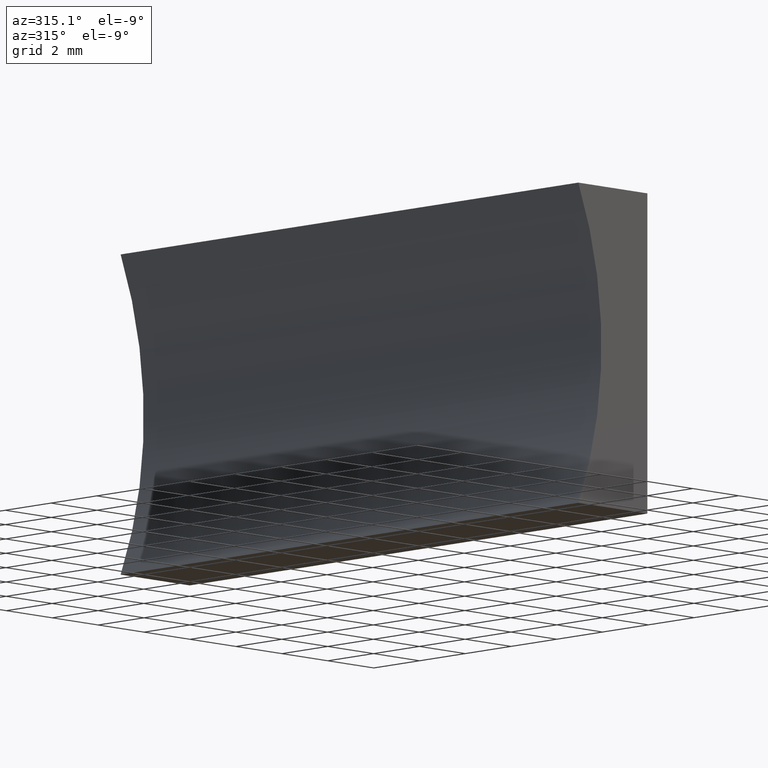
[diagram: clean part render]
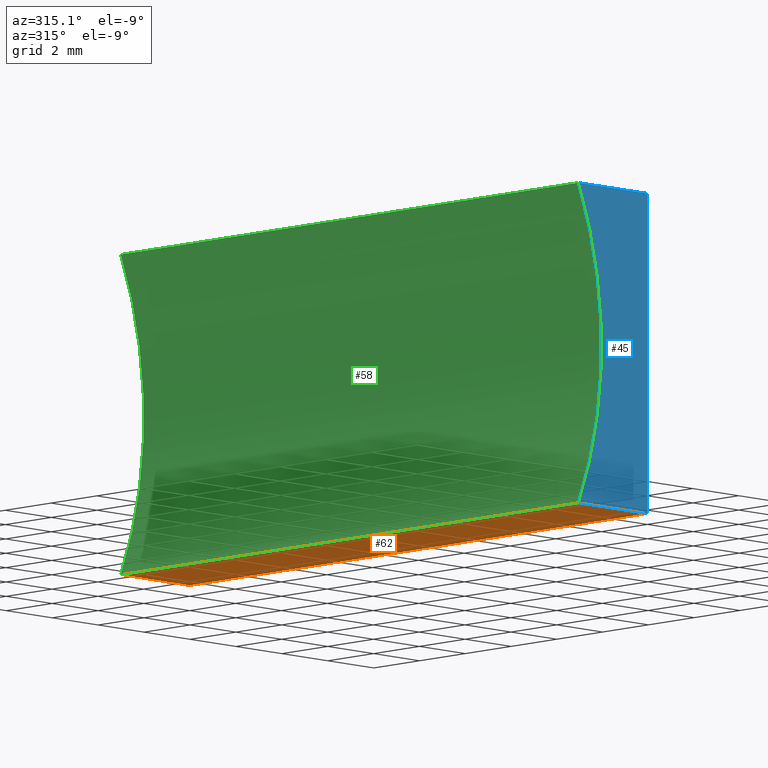
[diagram: same view with three faces highlighted in distinct colors, each labeled with its STEP entity id]
A machine part, auxiliary view with three faces highlighted in distinct colors.
Their STEP definitions:

[orange] entity #62 — the highlighted planar face has unit normal (-0, 0, 1).
#6 = VERTEX_POINT ( 'NONE', #30 ) ;
#10 = FACE_OUTER_BOUND ( 'NONE', #200, .T. ) ;
#14 = DIRECTION ( 'NONE',  ( -1.000000000000000000, 0.0000000000000000000, -5.771121341056381500E-016 ) ) ;
#15 = CARTESIAN_POINT ( 'NONE',  ( 0.0000000000000000000, 0.0000000000000000000, 0.0000000000000000000 ) ) ;
#17 = VECTOR ( 'NONE', #14, 1000.000000000000000 ) ;
#29 = DIRECTION ( 'NONE',  ( -0.0000000000000000000, -1.000000000000000000, -0.0000000000000000000 ) ) ;
#30 = CARTESIAN_POINT ( 'NONE',  ( -3.005869004409587000, 0.0000000000000000000, -2.602085213965210600E-015 ) ) ;
#39 = DIRECTION ( 'NONE',  ( 1.000000000000000000, 0.0000000000000000000, 5.771121341056381500E-016 ) ) ;
#42 = CARTESIAN_POINT ( 'NONE',  ( 0.0000000000000000000, 20.00000000000000000, 0.0000000000000000000 ) ) ;
#46 = EDGE_CURVE ( 'NONE', #57, #6, #64, .T. ) ;
#51 = CARTESIAN_POINT ( 'NONE',  ( 0.0000000000000000000, 20.00000000000000000, 0.0000000000000000000 ) ) ;
#52 = LINE ( 'NONE', #51, #17 ) ;
#57 = VERTEX_POINT ( 'NONE', #15 ) ;
#59 = VECTOR ( 'NONE', #96, 1000.000000000000000 ) ;
#62 = ADVANCED_FACE ( 'NONE', ( #10 ), #88, .F. ) ;
#64 = LINE ( 'NONE', #130, #81 ) ;
#68 = CARTESIAN_POINT ( 'NONE',  ( 0.0000000000000000000, 20.00000000000000000, 0.0000000000000000000 ) ) ;
#69 = EDGE_CURVE ( 'NONE', #95, #118, #52, .T. ) ;
#78 = AXIS2_PLACEMENT_3D ( 'NONE', #68, #151, #39 ) ;
#79 = ORIENTED_EDGE ( 'NONE', *, *, #46, .T. ) ;
#81 = VECTOR ( 'NONE', #91, 1000.000000000000000 ) ;
#88 = PLANE ( 'NONE',  #78 ) ;
#91 = DIRECTION ( 'NONE',  ( -1.000000000000000000, 0.0000000000000000000, -5.771121341056381500E-016 ) ) ;
#95 = VERTEX_POINT ( 'NONE', #142 ) ;
#96 = DIRECTION ( 'NONE',  ( -0.0000000000000000000, -1.000000000000000000, -0.0000000000000000000 ) ) ;
#101 = EDGE_CURVE ( 'NONE', #95, #57, #189, .T. ) ;
#110 = ORIENTED_EDGE ( 'NONE', *, *, #204, .F. ) ;
#118 = VERTEX_POINT ( 'NONE', #163 ) ;
#121 = CARTESIAN_POINT ( 'NONE',  ( -3.005869004409587000, 20.00000000000000000, -2.602085213965210600E-015 ) ) ;
#123 = LINE ( 'NONE', #121, #59 ) ;
#130 = CARTESIAN_POINT ( 'NONE',  ( 0.0000000000000000000, 0.0000000000000000000, 0.0000000000000000000 ) ) ;
#140 = VECTOR ( 'NONE', #29, 1000.000000000000000 ) ;
#142 = CARTESIAN_POINT ( 'NONE',  ( 0.0000000000000000000, 20.00000000000000000, 0.0000000000000000000 ) ) ;
#151 = DIRECTION ( 'NONE',  ( -5.771121341056381500E-016, 0.0000000000000000000, 1.000000000000000000 ) ) ;
#162 = ORIENTED_EDGE ( 'NONE', *, *, #101, .T. ) ;
#163 = CARTESIAN_POINT ( 'NONE',  ( -3.005869004409587000, 20.00000000000000000, -2.602085213965210600E-015 ) ) ;
#189 = LINE ( 'NONE', #42, #140 ) ;
#193 = ORIENTED_EDGE ( 'NONE', *, *, #69, .F. ) ;
#200 = EDGE_LOOP ( 'NONE', ( #79, #110, #193, #162 ) ) ;
#204 = EDGE_CURVE ( 'NONE', #118, #6, #123, .T. ) ;

[blue] entity #45 — the highlighted planar face has unit normal (0, 1, 0).
#6 = VERTEX_POINT ( 'NONE', #30 ) ;
#9 = CARTESIAN_POINT ( 'NONE',  ( -14.93000000000000000, 0.0000000000000000000, 5.000000000000001800 ) ) ;
#11 = CARTESIAN_POINT ( 'NONE',  ( 0.0000000000000000000, 0.0000000000000000000, 0.0000000000000000000 ) ) ;
#13 = AXIS2_PLACEMENT_3D ( 'NONE', #9, #179, #131 ) ;
#15 = CARTESIAN_POINT ( 'NONE',  ( 0.0000000000000000000, 0.0000000000000000000, 0.0000000000000000000 ) ) ;
#22 = VECTOR ( 'NONE', #32, 1000.000000000000000 ) ;
#24 = ORIENTED_EDGE ( 'NONE', *, *, #168, .F. ) ;
#27 = CARTESIAN_POINT ( 'NONE',  ( 6.123233995736766300E-016, 0.0000000000000000000, 10.00000000000000000 ) ) ;
#30 = CARTESIAN_POINT ( 'NONE',  ( -3.005869004409587000, 0.0000000000000000000, -2.602085213965210600E-015 ) ) ;
#32 = DIRECTION ( 'NONE',  ( -6.123233995736766000E-017, -0.0000000000000000000, -1.000000000000000000 ) ) ;
#36 = EDGE_CURVE ( 'NONE', #6, #72, #202, .T. ) ;
#44 = LINE ( 'NONE', #11, #22 ) ;
#45 = ADVANCED_FACE ( 'NONE', ( #76 ), #183, .F. ) ;
#46 = EDGE_CURVE ( 'NONE', #57, #6, #64, .T. ) ;
#47 = ORIENTED_EDGE ( 'NONE', *, *, #98, .F. ) ;
#54 = CARTESIAN_POINT ( 'NONE',  ( -3.005869004409586600, 0.0000000000000000000, 10.00000000000000200 ) ) ;
#57 = VERTEX_POINT ( 'NONE', #15 ) ;
#64 = LINE ( 'NONE', #130, #81 ) ;
#66 = EDGE_LOOP ( 'NONE', ( #146, #24, #47, #87 ) ) ;
#70 = DIRECTION ( 'NONE',  ( 0.0000000000000000000, -0.0000000000000000000, 1.000000000000000000 ) ) ;
#71 = CARTESIAN_POINT ( 'NONE',  ( 6.123233995736766300E-016, 0.0000000000000000000, 10.00000000000000000 ) ) ;
#72 = VERTEX_POINT ( 'NONE', #54 ) ;
#74 = AXIS2_PLACEMENT_3D ( 'NONE', #126, #152, #70 ) ;
#76 = FACE_OUTER_BOUND ( 'NONE', #66, .T. ) ;
#81 = VECTOR ( 'NONE', #91, 1000.000000000000000 ) ;
#87 = ORIENTED_EDGE ( 'NONE', *, *, #36, .F. ) ;
#91 = DIRECTION ( 'NONE',  ( -1.000000000000000000, 0.0000000000000000000, -5.771121341056381500E-016 ) ) ;
#98 = EDGE_CURVE ( 'NONE', #72, #165, #145, .T. ) ;
#126 = CARTESIAN_POINT ( 'NONE',  ( -14.93000000000000000, 0.0000000000000000000, 5.000000000000001800 ) ) ;
#130 = CARTESIAN_POINT ( 'NONE',  ( 0.0000000000000000000, 0.0000000000000000000, 0.0000000000000000000 ) ) ;
#131 = DIRECTION ( 'NONE',  ( 0.0000000000000000000, 0.0000000000000000000, 1.000000000000000000 ) ) ;
#145 = LINE ( 'NONE', #71, #195 ) ;
#146 = ORIENTED_EDGE ( 'NONE', *, *, #46, .F. ) ;
#152 = DIRECTION ( 'NONE',  ( 0.0000000000000000000, 1.000000000000000000, 0.0000000000000000000 ) ) ;
#158 = DIRECTION ( 'NONE',  ( 1.000000000000000000, -0.0000000000000000000, -5.771121341056383500E-016 ) ) ;
#165 = VERTEX_POINT ( 'NONE', #27 ) ;
#168 = EDGE_CURVE ( 'NONE', #165, #57, #44, .T. ) ;
#179 = DIRECTION ( 'NONE',  ( -0.0000000000000000000, -1.000000000000000000, -0.0000000000000000000 ) ) ;
#183 = PLANE ( 'NONE',  #74 ) ;
#195 = VECTOR ( 'NONE', #158, 1000.000000000000000 ) ;
#202 = CIRCLE ( 'NONE', #13, 12.93000000000000300 ) ;

[green] entity #58 — the highlighted cylindrical surface (partial cylindrical patch) has radius 12.93 mm, axis along (-0, -1, -0).
#3 = VERTEX_POINT ( 'NONE', #53 ) ;
#6 = VERTEX_POINT ( 'NONE', #30 ) ;
#9 = CARTESIAN_POINT ( 'NONE',  ( -14.93000000000000000, 0.0000000000000000000, 5.000000000000001800 ) ) ;
#13 = AXIS2_PLACEMENT_3D ( 'NONE', #9, #179, #131 ) ;
#26 = CIRCLE ( 'NONE', #154, 12.93000000000000300 ) ;
#30 = CARTESIAN_POINT ( 'NONE',  ( -3.005869004409587000, 0.0000000000000000000, -2.602085213965210600E-015 ) ) ;
#33 = ORIENTED_EDGE ( 'NONE', *, *, #36, .T. ) ;
#35 = ORIENTED_EDGE ( 'NONE', *, *, #204, .T. ) ;
#36 = EDGE_CURVE ( 'NONE', #6, #72, #202, .T. ) ;
#48 = CARTESIAN_POINT ( 'NONE',  ( -3.005869004409586600, 20.00000000000000000, 10.00000000000000200 ) ) ;
#53 = CARTESIAN_POINT ( 'NONE',  ( -3.005869004409586600, 20.00000000000000000, 10.00000000000000200 ) ) ;
#54 = CARTESIAN_POINT ( 'NONE',  ( -3.005869004409586600, 0.0000000000000000000, 10.00000000000000200 ) ) ;
#58 = ADVANCED_FACE ( 'NONE', ( #115 ), #175, .F. ) ;
#59 = VECTOR ( 'NONE', #96, 1000.000000000000000 ) ;
#72 = VERTEX_POINT ( 'NONE', #54 ) ;
#82 = DIRECTION ( 'NONE',  ( -0.0000000000000000000, -1.000000000000000000, -0.0000000000000000000 ) ) ;
#83 = DIRECTION ( 'NONE',  ( 0.0000000000000000000, 0.0000000000000000000, 1.000000000000000000 ) ) ;
#96 = DIRECTION ( 'NONE',  ( -0.0000000000000000000, -1.000000000000000000, -0.0000000000000000000 ) ) ;
#104 = VECTOR ( 'NONE', #120, 1000.000000000000000 ) ;
#107 = DIRECTION ( 'NONE',  ( 0.0000000000000000000, 0.0000000000000000000, -1.000000000000000000 ) ) ;
#108 = EDGE_CURVE ( 'NONE', #118, #3, #26, .T. ) ;
#111 = CARTESIAN_POINT ( 'NONE',  ( -14.93000000000000000, 20.00000000000000000, 5.000000000000001800 ) ) ;
#115 = FACE_OUTER_BOUND ( 'NONE', #190, .T. ) ;
#118 = VERTEX_POINT ( 'NONE', #163 ) ;
#120 = DIRECTION ( 'NONE',  ( -0.0000000000000000000, -1.000000000000000000, -0.0000000000000000000 ) ) ;
#121 = CARTESIAN_POINT ( 'NONE',  ( -3.005869004409587000, 20.00000000000000000, -2.602085213965210600E-015 ) ) ;
#123 = LINE ( 'NONE', #121, #59 ) ;
#131 = DIRECTION ( 'NONE',  ( 0.0000000000000000000, 0.0000000000000000000, 1.000000000000000000 ) ) ;
#138 = LINE ( 'NONE', #48, #104 ) ;
#139 = AXIS2_PLACEMENT_3D ( 'NONE', #111, #198, #107 ) ;
#154 = AXIS2_PLACEMENT_3D ( 'NONE', #177, #82, #83 ) ;
#155 = ORIENTED_EDGE ( 'NONE', *, *, #108, .F. ) ;
#159 = EDGE_CURVE ( 'NONE', #3, #72, #138, .T. ) ;
#163 = CARTESIAN_POINT ( 'NONE',  ( -3.005869004409587000, 20.00000000000000000, -2.602085213965210600E-015 ) ) ;
#174 = ORIENTED_EDGE ( 'NONE', *, *, #159, .F. ) ;
#175 = CYLINDRICAL_SURFACE ( 'NONE', #139, 12.93000000000000000 ) ;
#177 = CARTESIAN_POINT ( 'NONE',  ( -14.93000000000000000, 20.00000000000000000, 5.000000000000001800 ) ) ;
#179 = DIRECTION ( 'NONE',  ( -0.0000000000000000000, -1.000000000000000000, -0.0000000000000000000 ) ) ;
#190 = EDGE_LOOP ( 'NONE', ( #33, #174, #155, #35 ) ) ;
#198 = DIRECTION ( 'NONE',  ( -0.0000000000000000000, -1.000000000000000000, -0.0000000000000000000 ) ) ;
#202 = CIRCLE ( 'NONE', #13, 12.93000000000000300 ) ;
#204 = EDGE_CURVE ( 'NONE', #118, #6, #123, .T. ) ;